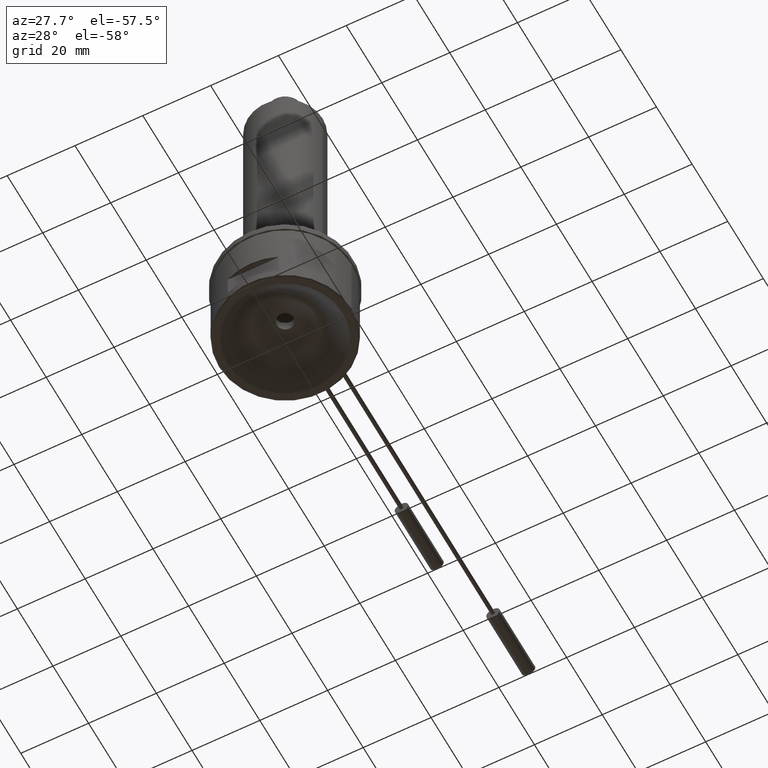
[diagram: clean part render]
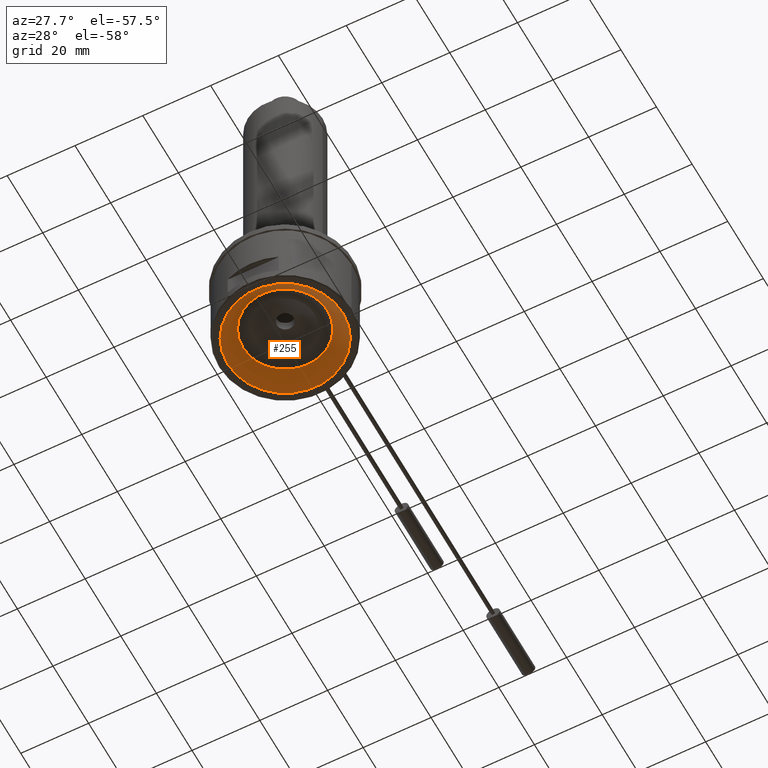
[diagram: same view with one face highlighted and labeled with its STEP entity id]
A machine part, auxiliary view. The second image highlights one B-rep face of the part: STEP entity #255.
In plain terms, the highlighted conical surface has half-angle 45 deg.
Its self-contained STEP definition (entity closure, byte-faithful):
#255=ADVANCED_FACE('',(#379,#380),#303,.F.);
#303=CONICAL_SURFACE('',#1186,11.,44.9999999999999);
#379=FACE_BOUND('',#459,.T.);
#380=FACE_BOUND('',#460,.T.);
#459=EDGE_LOOP('',(#636));
#460=EDGE_LOOP('',(#637));
#636=ORIENTED_EDGE('',*,*,#988,.T.);
#637=ORIENTED_EDGE('',*,*,#989,.F.);
#865=VERTEX_POINT('',#2077);
#866=VERTEX_POINT('',#2080);
#988=EDGE_CURVE('',#865,#865,#1087,.T.);
#989=EDGE_CURVE('',#866,#866,#1088,.T.);
#1087=CIRCLE('',#1183,12.4644660940673);
#1088=CIRCLE('',#1185,17.);
#1183=AXIS2_PLACEMENT_3D('',#2076,#1421,#1422);
#1185=AXIS2_PLACEMENT_3D('',#2079,#1425,#1426);
#1186=AXIS2_PLACEMENT_3D('',#2081,#1427,#1428);
#1421=DIRECTION('',(0.,0.,1.));
#1422=DIRECTION('',(-1.,0.,0.));
#1425=DIRECTION('',(0.,0.,1.));
#1426=DIRECTION('',(1.,0.,0.));
#1427=DIRECTION('',(0.,0.,-1.));
#1428=DIRECTION('',(-1.,0.,2.65956616000402E-17));
#2076=CARTESIAN_POINT('',(0.,0.,4.5355339059327));
#2077=CARTESIAN_POINT('',(-12.4644660940673,0.,4.5355339059327));
#2079=CARTESIAN_POINT('',(0.,0.,-1.73472347597681E-15));
#2080=CARTESIAN_POINT('',(17.,0.,-1.73472347597681E-15));
#2081=CARTESIAN_POINT('',(0.,0.,5.99999999999998));